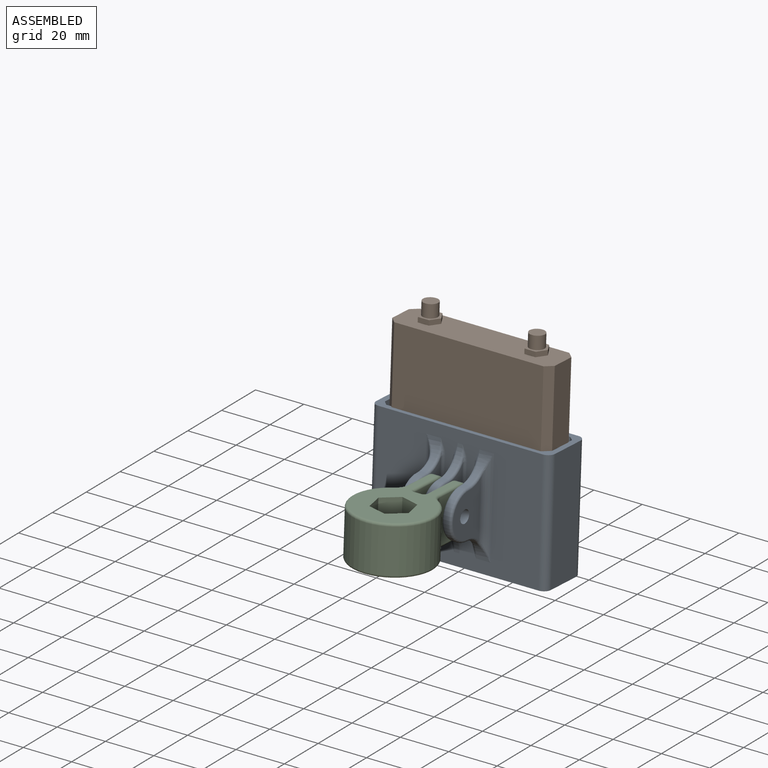
[diagram: assembled view]
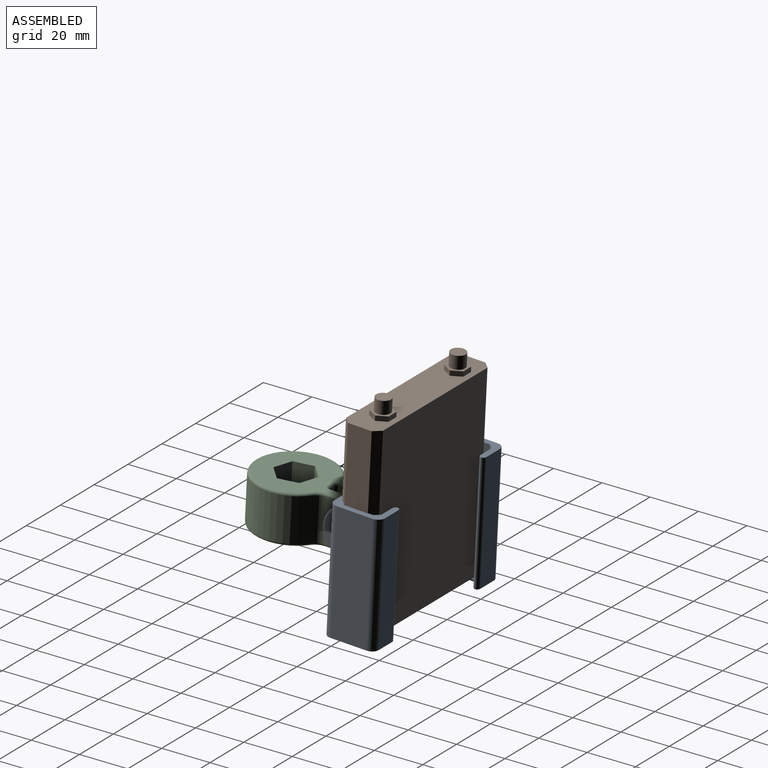
[diagram: assembled view, second angle]
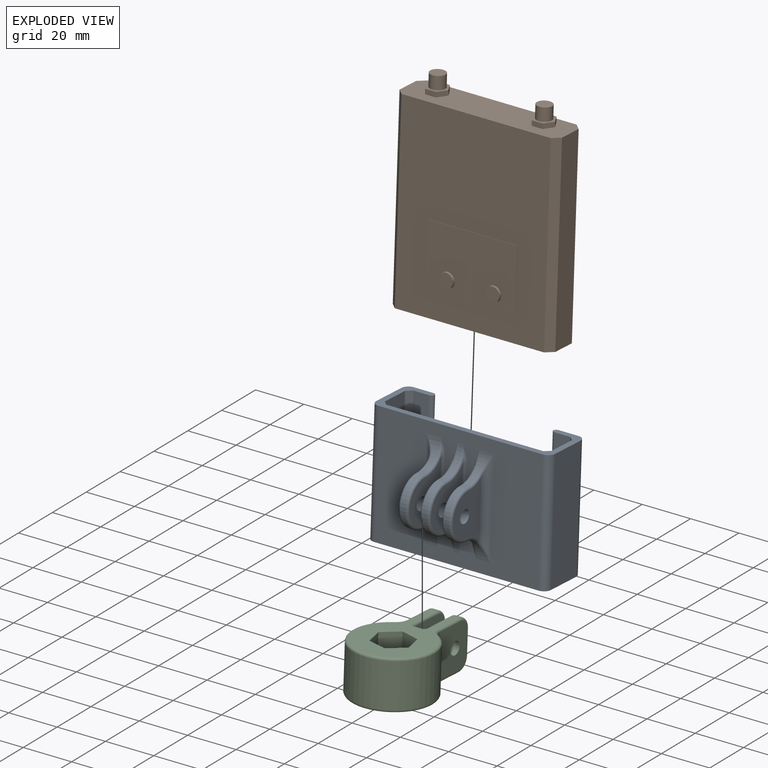
[diagram: exploded view]
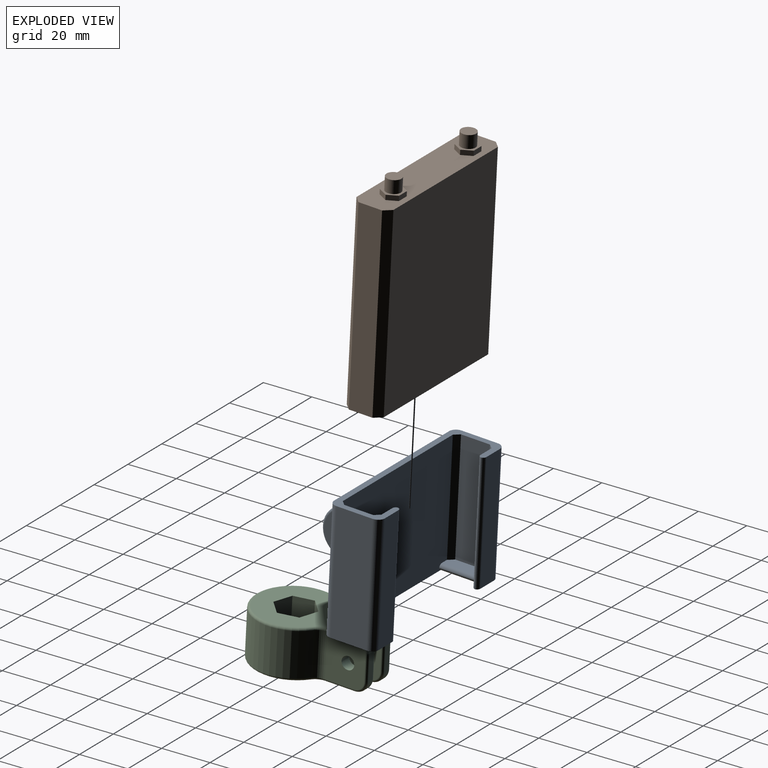
[diagram: exploded view, second angle]
ASSEMBLY  parts=3 mates=2
PART A: 84 faces, bbox 74.1x41.9x50.1 mm
  f0: plane 50x8mm, normal (0,1,0), area 400mm2, adj f10,f11,f18,f28
  f1: plane 50x15mm, normal (-1,0,0), area 750mm2, adj f10,f11,f18,f19
  f2: plane 68x50mm, normal (0,-1,0), area 2558.2mm2, adj f10,f11,f19,f20,f39,f41,f42,f44
  f3: plane 50x15mm, normal (1,0,0), area 750mm2, adj f10,f11,f20,f21
  f4: plane 50x8mm, normal (0,1,0), area 400mm2, adj f10,f11,f21,f27
  f5: plane 50x7.5mm, normal (0,-1,0), area 324.6mm2, adj f10,f11,f16,f22,f23,f26
  f6: plane 47.5x12mm, normal (-1,0,0), area 570mm2, adj f10,f13,f16,f17
  f7: plane 66x50mm, normal (0,1,0), area 3239.3mm2, adj f10,f11,f12,f15,f17,f22,f23,f24
  f8: plane 47.5x12mm, normal (1,0,0), area 570mm2, adj f10,f12,f14,f15
  f9: plane 50x6.5mm, normal (0,-1,0), area 314.7mm2, adj f10,f11,f12,f14,f24,f25,f29
  f10: plane 74x21mm, normal (0,0,1), area 325.8mm2, adj f0,f1,f2,f3,f4,f5,f6,f7
  f11: plane 74x21mm, normal (0,0,-1), area 413.8mm2, adj f0,f1,f2,f3,f4,f5,f7,f9
  f12: plane 16x5mm, normal (0,0,1), area 76mm2, adj f7,f8,f9,f14,f15,f24
  f13: plane 14x1mm, normal (0,0,1), area 13mm2, adj f6,f16,f17,f22
  f14: plane 47.5x2mm, normal (0.71,-0.71,0), area 134.4mm2, adj f8,f9,f10,f12
  f15: plane 47.5x2mm, normal (0.71,0.71,0), area 134.4mm2, adj f7,f8,f10,f12
  f16: plane 47.95x2.07mm, normal (-0.71,-0.71,0), area 134.5mm2, adj f5,f6,f10,f13,f22
  f17: plane 47.95x2.07mm, normal (-0.71,0.71,0), area 134.5mm2, adj f6,f7,f10,f13,f22
  f18: cylinder r=3mm len=50mm, axis (0,0,-1), area 235.6mm2, adj f0,f1,f10,f11
  f19: cylinder r=3mm len=50mm, axis (0,0,-1), area 235.6mm2, adj f1,f2,f10,f11
  f20: cylinder r=3mm len=50mm, axis (0,0,-1), area 235.6mm2, adj f2,f3,f10,f11
  f21: cylinder r=3mm len=50mm, axis (0,0,-1), area 235.6mm2, adj f3,f4,f10,f11
  f22: cylinder r=1.5mm len=16mm, axis (0,1,0), area 32.6mm2, adj f5,f7,f13,f16,f17,f23
  f23: cylinder r=1.5mm len=16mm, axis (0,-1,0), area 33.7mm2, adj f5,f7,f11,f22
  f24: cylinder r=1.5mm len=16mm, axis (0,-1,0), area 33.7mm2, adj f7,f9,f12,f25
  f25: cylinder r=1.5mm len=16mm, axis (0,1,0), area 33.7mm2, adj f7,f9,f11,f24
  f26: cylinder r=1.5mm len=50mm, axis (0,0,-1), area 105.3mm2, adj f5,f10,f11,f27
  f27: cylinder r=1.5mm len=50mm, axis (0,0,-1), area 105.3mm2, adj f4,f10,f11,f26
  f28: cylinder r=1.5mm len=50mm, axis (0,0,-1), area 105.3mm2, adj f0,f10,f11,f29
  f29: cylinder r=1.5mm len=50mm, axis (0,0,-1), area 105.3mm2, adj f9,f10,f11,f28
  f30: plane 23.03x16mm, normal (1,0,0), area 242.7mm2, adj f38,f49,f51,f52,f53
  f31: plane 27.35x18mm, normal (-1,0,0), area 292.7mm2, adj f38,f73,f74,f76,f77
  f32: plane 27.35x18mm, normal (1,0,0), area 292.7mm2, adj f37,f61,f62,f64,f65
  f33: plane 27.35x18mm, normal (-1,0,0), area 292.7mm2, adj f37,f67,f68,f70,f71
  f34: plane 27.35x18mm, normal (1,0,0), area 292.7mm2, adj f36,f79,f80,f82,f83
  f35: plane 23.03x16mm, normal (-1,0,0), area 242.7mm2, adj f36,f48,f56,f57,f58
  f36: cylinder r=2.62mm len=5.25mm, axis (-1,0,0), area 66mm2, adj f34,f35
  f37: cylinder r=2.62mm len=5.25mm, axis (-1,0,0), area 66mm2, adj f32,f33
  f38: cylinder r=2.62mm len=5.25mm, axis (-1,0,0), area 66mm2, adj f30,f31
  f39: cylinder r=10mm len=10mm, axis (1,0,0), area 44.9mm2, adj f2,f40,f58,f59,f80
  f40: cylinder r=10mm len=20mm, axis (-1,0,0), area 62.8mm2, adj f39,f41,f57,f82
  f41: cylinder r=10mm len=10mm, axis (-1,0,0), area 44.9mm2, adj f2,f40,f55,f56,f83
  f42: cylinder r=10mm len=10mm, axis (1,0,0), area 44.9mm2, adj f2,f43,f50,f51,f77
  f43: cylinder r=10mm len=20mm, axis (-1,0,0), area 62.8mm2, adj f42,f44,f52,f76
  f44: cylinder r=10mm len=10mm, axis (-1,0,0), area 44.9mm2, adj f2,f43,f53,f54,f74
  f45: cylinder r=10mm len=10mm, axis (1,0,0), area 31.4mm2, adj f2,f46,f62,f71
  f46: cylinder r=10mm len=20mm, axis (-1,0,0), area 62.8mm2, adj f45,f47,f64,f70
  f47: cylinder r=10mm len=10mm, axis (-1,0,0), area 31.4mm2, adj f2,f46,f65,f68
  f48: cylinder r=3mm len=40mm, axis (0,0,-1), area 144.2mm2, adj f2,f35,f55,f59
  f49: cylinder r=3mm len=40mm, axis (0,0,1), area 144.2mm2, adj f2,f30,f50,f54
  f50: bspline ~9.14x4.43mm, area 7.6mm2, adj f42,f49,f51
  f51: torus R=11mm, axis (1,0,0), area 11.2mm2, adj f30,f42,f50,f52
  f52: torus R=9mm, axis (1,0,0), area 47.6mm2, adj f30,f43,f51,f53
  f53: torus R=11mm, axis (1,0,0), area 11.2mm2, adj f30,f44,f52,f54
  f54: bspline ~9.14x4.43mm, area 7.6mm2, adj f44,f49,f53
  f55: bspline ~9.14x4.43mm, area 7.6mm2, adj f41,f48,f56
  f56: torus R=11mm, axis (1,0,0), area 11.2mm2, adj f35,f41,f55,f57
  f57: torus R=9mm, axis (1,0,0), area 47.6mm2, adj f35,f40,f56,f58
  f58: torus R=11mm, axis (1,0,0), area 11.2mm2, adj f35,f39,f57,f59
  f59: bspline ~9.14x4.43mm, area 7.6mm2, adj f39,f48,f58
  f60: bspline ~6.59x2mm, area 5mm2, adj f2,f61,f62
  f61: cylinder r=1mm len=27.35mm, axis (0,0,1), area 43mm2, adj f2,f32,f60,f63
  f62: torus R=11mm, axis (1,0,0), area 20mm2, adj f32,f45,f60,f64
  f63: bspline ~6.59x2mm, area 5mm2, adj f2,f61,f65
  f64: torus R=9mm, axis (1,0,0), area 47.6mm2, adj f32,f46,f62,f65
  f65: torus R=11mm, axis (1,0,0), area 20mm2, adj f32,f47,f63,f64
  f66: bspline ~6.59x2mm, area 4.9mm2, adj f2,f67,f68
  f67: cylinder r=1mm len=27.35mm, axis (0,0,-1), area 43mm2, adj f2,f33,f66,f69
  f68: torus R=11mm, axis (1,0,0), area 20mm2, adj f33,f47,f66,f70
  f69: bspline ~6.59x2mm, area 4.9mm2, adj f2,f67,f71
  f70: torus R=9mm, axis (1,0,0), area 47.6mm2, adj f33,f46,f68,f71
  f71: torus R=11mm, axis (1,0,0), area 20mm2, adj f33,f45,f69,f70
  f72: bspline ~6.59x2mm, area 4.9mm2, adj f2,f73,f74
  f73: cylinder r=1mm len=27.35mm, axis (0,0,-1), area 43mm2, adj f2,f31,f72,f75
  f74: torus R=11mm, axis (1,0,0), area 20mm2, adj f31,f44,f72,f76
  f75: bspline ~6.59x2mm, area 4.9mm2, adj f2,f73,f77
  f76: torus R=9mm, axis (1,0,0), area 47.6mm2, adj f31,f43,f74,f77
  f77: torus R=11mm, axis (1,0,0), area 20mm2, adj f31,f42,f75,f76
  f78: bspline ~6.59x2mm, area 5mm2, adj f2,f79,f80
  f79: cylinder r=1mm len=27.35mm, axis (0,0,1), area 43mm2, adj f2,f34,f78,f81
  f80: torus R=11mm, axis (1,0,0), area 20mm2, adj f34,f39,f78,f82
  f81: bspline ~6.59x2mm, area 5mm2, adj f2,f79,f83
  f82: torus R=9mm, axis (1,0,0), area 47.6mm2, adj f34,f40,f80,f83
  f83: torus R=11mm, axis (1,0,0), area 20mm2, adj f34,f41,f81,f82
PART B: 45 faces, bbox 67.2x16.4x86 mm
  f0: plane 78.7x61.73mm, normal (0,-1,0), area 3890.2mm2, adj f1,f5,f32,f33,f34,f35,f41,f44
  f1: plane 67.23x15.31mm, normal (0,0,1), area 903.3mm2, adj f0,f2,f3,f4,f14,f15,f16,f17
  f2: plane 78.7x9.81mm, normal (-1,0,0), area 772mm2, adj f1,f5,f41,f42
  f3: plane 78.7x9.81mm, normal (1,0,0), area 772mm2, adj f1,f5,f43,f44
  f4: plane 78.7x61.73mm, normal (0,1,0), area 4858.2mm2, adj f1,f5,f42,f43
  f5: plane 67.23x15.31mm, normal (0,0,-1), area 975.7mm2, adj f0,f2,f3,f4,f6,f8,f10,f12
  f6: cylinder r=1.75mm len=25mm, axis (0,0,-1), area 274.9mm2, adj f5,f7
  f7: plane 3.5x3.5mm, normal (0,0,-1), area 9.6mm2, adj f6
  f8: cylinder r=1.75mm len=25mm, axis (0,0,-1), area 274.9mm2, adj f5,f9
  f9: plane 3.5x3.5mm, normal (0,0,-1), area 9.6mm2, adj f8
  f10: cylinder r=1.75mm len=25mm, axis (0,0,-1), area 274.9mm2, adj f5,f11
  f11: plane 3.5x3.5mm, normal (0,0,-1), area 9.6mm2, adj f10
  f12: cylinder r=1.75mm len=25mm, axis (0,0,-1), area 274.9mm2, adj f5,f13
  f13: plane 3.5x3.5mm, normal (0,0,-1), area 9.6mm2, adj f12
  f14: plane 4x2.31mm, normal (-0.87,0.5,0), area 9.2mm2, adj f1,f15,f19,f20
  f15: plane 4x2.31mm, normal (-0.87,-0.5,0), area 9.2mm2, adj f1,f14,f16,f20
  f16: plane 4.62x2mm, normal (0,-1,0), area 9.2mm2, adj f1,f15,f17,f20
  f17: plane 4x2.31mm, normal (0.87,-0.5,0), area 9.2mm2, adj f1,f16,f18,f20
  f18: plane 4x2.31mm, normal (0.87,0.5,0), area 9.2mm2, adj f1,f17,f19,f20
  f19: plane 4.62x2mm, normal (0,1,0), area 9.2mm2, adj f1,f14,f18,f20
  f20: plane 9.24x8mm, normal (0,0,1), area 25.2mm2, adj f14,f15,f16,f17,f18,f19,f30
  f21: plane 4x2.31mm, normal (-0.87,0.5,0), area 9.2mm2, adj f1,f22,f26,f27
  f22: plane 4x2.31mm, normal (-0.87,-0.5,0), area 9.2mm2, adj f1,f21,f23,f27
  f23: plane 4.62x2mm, normal (0,-1,0), area 9.2mm2, adj f1,f22,f24,f27
  f24: plane 4x2.31mm, normal (0.87,-0.5,0), area 9.2mm2, adj f1,f23,f25,f27
  f25: plane 4x2.31mm, normal (0.87,0.5,0), area 9.2mm2, adj f1,f24,f26,f27
  f26: plane 4.62x2mm, normal (0,1,0), area 9.2mm2, adj f1,f21,f25,f27
  f27: plane 9.24x8mm, normal (0,0,1), area 25.2mm2, adj f21,f22,f23,f24,f25,f26,f28
  f28: cylinder r=3.1mm len=6.2mm, axis (0,0,-1), area 102.8mm2, adj f27,f29
  f29: plane 6.2x6.2mm, normal (0,0,1), area 30.2mm2, adj f28
  f30: cylinder r=3.1mm len=6.2mm, axis (0,0,-1), area 102.8mm2, adj f20,f31
  f31: plane 6.2x6.2mm, normal (0,0,1), area 30.2mm2, adj f30
  f32: plane 26x0.1mm, normal (-1,0,0), area 2.6mm2, adj f0,f33,f35,f36
  f33: plane 37.23x0.1mm, normal (0,0,-1), area 3.7mm2, adj f0,f32,f34,f36
  f34: plane 26x0.1mm, normal (1,0,0), area 2.6mm2, adj f0,f33,f35,f36
  f35: plane 37.23x0.1mm, normal (0,0,1), area 3.7mm2, adj f0,f32,f34,f36
  f36: plane 37.23x26mm, normal (0,-1,0), area 911.4mm2, adj f32,f33,f34,f35,f37,f39
  f37: cylinder r=3mm len=6mm, axis (0,1,0), area 18.8mm2, adj f36,f38
  f38: plane 6x6mm, normal (0,-1,0), area 28.3mm2, adj f37
  f39: cylinder r=3mm len=6mm, axis (0,1,0), area 18.8mm2, adj f36,f40
  f40: plane 6x6mm, normal (0,-1,0), area 28.3mm2, adj f39
  f41: plane 78.7x2.75mm, normal (-0.71,-0.71,0), area 306.1mm2, adj f0,f1,f2,f5
  f42: plane 78.7x2.75mm, normal (-0.71,0.71,0), area 306.1mm2, adj f1,f2,f4,f5
  f43: plane 78.7x2.75mm, normal (0.71,0.71,0), area 306.1mm2, adj f1,f3,f4,f5
  f44: plane 78.7x2.75mm, normal (0.71,-0.71,0), area 306.1mm2, adj f0,f1,f3,f5
PART C: 60 faces, bbox 53.2x35.7x20.8 mm
  f0: plane 45.44x31mm, normal (0,0,-1), area 758.4mm2, adj f4,f22,f25,f29,f31,f33,f35,f37
  f1: plane 45.44x31mm, normal (0,0,1), area 650.4mm2, adj f5,f6,f7,f8,f9,f10,f21,f24
  f2: cylinder r=16.5mm len=33mm, axis (0,0,-1), area 1514.4mm2, adj f20,f23,f33,f34
  f3: plane 16.01x15.76mm, normal (0,0,1), area 107.9mm2, adj f4,f5,f6,f7,f8,f9,f10
  f4: cylinder r=4.65mm len=9.3mm, axis (0,0,-1), area 87.7mm2, adj f0,f3
  f5: plane 17x7.88mm, normal (0.96,-0.29,0), area 139.9mm2, adj f1,f3,f6,f10
  f6: plane 17x8.01mm, normal (0.23,-0.97,0), area 139.9mm2, adj f1,f3,f5,f7
  f7: plane 17x5.99mm, normal (-0.73,-0.69,0), area 139.9mm2, adj f1,f3,f6,f8
  f8: plane 17x7.88mm, normal (-0.96,0.29,0), area 139.9mm2, adj f1,f3,f7,f9
  f9: plane 17x8.01mm, normal (-0.23,0.97,0), area 139.9mm2, adj f1,f3,f8,f10
  f10: plane 17x5.99mm, normal (0.73,0.69,0), area 139.9mm2, adj f1,f3,f5,f9
  f11: plane 18x18mm, normal (0,-1,0), area 295.5mm2, adj f19,f51,f55,f56,f57,f58,f59
  f12: plane 10x2.5mm, normal (1,0,0), area 25mm2, adj f24,f25,f41,f59
  f13: plane 18x16.1mm, normal (0,1,0), area 261.3mm2, adj f19,f23,f37,f38,f39,f40,f41
  f14: plane 10x2.5mm, normal (1,0,0), area 25mm2, adj f21,f22,f26,f42
  f15: plane 18x18mm, normal (0,1,0), area 295.5mm2, adj f18,f42,f43,f44,f45,f46,f47
  f16: plane 18x16.1mm, normal (0,-1,0), area 261.3mm2, adj f18,f20,f26,f27,f28,f29,f30
  f17: plane 18x3mm, normal (1,0,0), area 54mm2, adj f46,f50,f51,f52
  f18: cylinder r=2.62mm len=5.25mm, axis (0,-1,0), area 74.2mm2, adj f15,f16
  f19: cylinder r=2.62mm len=5.25mm, axis (0,-1,0), area 74.2mm2, adj f11,f13
  f20: cylinder r=5mm len=18mm, axis (0,0,-1), area 88.1mm2, adj f2,f16,f31,f32
  f21: cylinder r=5mm len=5mm, axis (0,1,0), area 19.6mm2, adj f1,f14,f28,f44
  f22: cylinder r=5mm len=5mm, axis (0,-1,0), area 19.6mm2, adj f0,f14,f27,f43
  f23: cylinder r=5mm len=18mm, axis (0,0,-1), area 88.1mm2, adj f2,f13,f35,f36
  f24: cylinder r=5mm len=5mm, axis (0,1,0), area 19.6mm2, adj f1,f12,f40,f58
  f25: cylinder r=5mm len=5mm, axis (0,-1,0), area 19.6mm2, adj f0,f12,f39,f57
  f26: cylinder r=1mm len=10mm, axis (0,0,-1), area 15.7mm2, adj f14,f16,f27,f28
  f27: torus R=4mm, axis (0,-1,0), area 11.4mm2, adj f16,f22,f26,f29
  f28: torus R=4mm, axis (0,-1,0), area 11.4mm2, adj f16,f21,f26,f30
  f29: cylinder r=1mm len=12.1mm, axis (-1,0,0), area 19mm2, adj f0,f16,f27,f31
  f30: cylinder r=1mm len=12.1mm, axis (1,0,0), area 19mm2, adj f1,f16,f28,f32
  f31: torus R=6mm, axis (0,0,1), area 8.2mm2, adj f0,f20,f29,f33
  f32: torus R=6mm, axis (0,0,1), area 8.2mm2, adj f1,f20,f30,f34
  f33: torus R=15.5mm, axis (0,0,1), area 129.2mm2, adj f0,f2,f31,f35
  f34: torus R=15.5mm, axis (0,0,1), area 129.2mm2, adj f1,f2,f32,f36
  f35: torus R=6mm, axis (0,0,1), area 8.2mm2, adj f0,f23,f33,f37
  f36: torus R=6mm, axis (0,0,1), area 8.2mm2, adj f1,f23,f34,f38
  f37: cylinder r=1mm len=12.1mm, axis (1,0,0), area 19mm2, adj f0,f13,f35,f39
  f38: cylinder r=1mm len=12.1mm, axis (-1,0,0), area 19mm2, adj f1,f13,f36,f40
  f39: torus R=4mm, axis (0,-1,0), area 11.4mm2, adj f13,f25,f37,f41
  f40: torus R=4mm, axis (0,-1,0), area 11.4mm2, adj f13,f24,f38,f41
  f41: cylinder r=1mm len=10mm, axis (0,0,1), area 15.7mm2, adj f12,f13,f39,f40
  f42: cylinder r=1mm len=10mm, axis (0,0,-1), area 15.7mm2, adj f14,f15,f43,f44
  f43: torus R=4mm, axis (0,1,0), area 11.4mm2, adj f15,f22,f42,f45
  f44: torus R=4mm, axis (0,1,0), area 11.4mm2, adj f15,f21,f42,f47
  f45: cylinder r=1mm len=14mm, axis (1,0,0), area 22mm2, adj f0,f15,f43,f48
  f46: cylinder r=1mm len=18mm, axis (0,0,1), area 28.3mm2, adj f15,f17,f48,f49
  f47: cylinder r=1mm len=14mm, axis (-1,0,0), area 22mm2, adj f1,f15,f44,f49
  f48: torus R=2mm, axis (0,0,1), area 3.4mm2, adj f0,f45,f46,f50
  f49: torus R=2mm, axis (0,0,1), area 3.4mm2, adj f1,f46,f47,f52
  f50: cylinder r=1mm len=3mm, axis (0,-1,0), area 4.7mm2, adj f0,f17,f48,f53
  f51: cylinder r=1mm len=18mm, axis (0,0,1), area 28.3mm2, adj f11,f17,f53,f54
  f52: cylinder r=1mm len=3mm, axis (0,1,0), area 4.7mm2, adj f1,f17,f49,f54
  f53: torus R=2mm, axis (0,0,1), area 3.4mm2, adj f0,f50,f51,f55
  f54: torus R=2mm, axis (0,0,1), area 3.4mm2, adj f1,f51,f52,f56
  f55: cylinder r=1mm len=14mm, axis (-1,0,0), area 22mm2, adj f0,f11,f53,f57
  f56: cylinder r=1mm len=14mm, axis (1,0,0), area 22mm2, adj f1,f11,f54,f58
  f57: torus R=4mm, axis (0,-1,0), area 11.4mm2, adj f11,f25,f55,f59
  f58: torus R=4mm, axis (0,-1,0), area 11.4mm2, adj f11,f24,f56,f59
  f59: cylinder r=1mm len=10mm, axis (0,0,-1), area 15.7mm2, adj f11,f12,f57,f58
PLACE A rot(axis=(-1,0,0),2.9deg) t=(-30.26,0.78,-12.45)mm
PLACE B rot(axis=(-1,0,0),2.9deg) t=(-18.39,8.91,-10.36)mm
PLACE C rot(axis=(-0.03,0.03,1),90deg) t=(-17.66,-39.85,4.64)mm
MATE planar B.f6 <-> A.f12  axis (0,-0.05,-1) through (6.53,7.28,-10.28)mm
MATE fastened C.f18 <-> A.f36  axis (-1,0,0) through (-24.66,-12.43,13.26)mm
